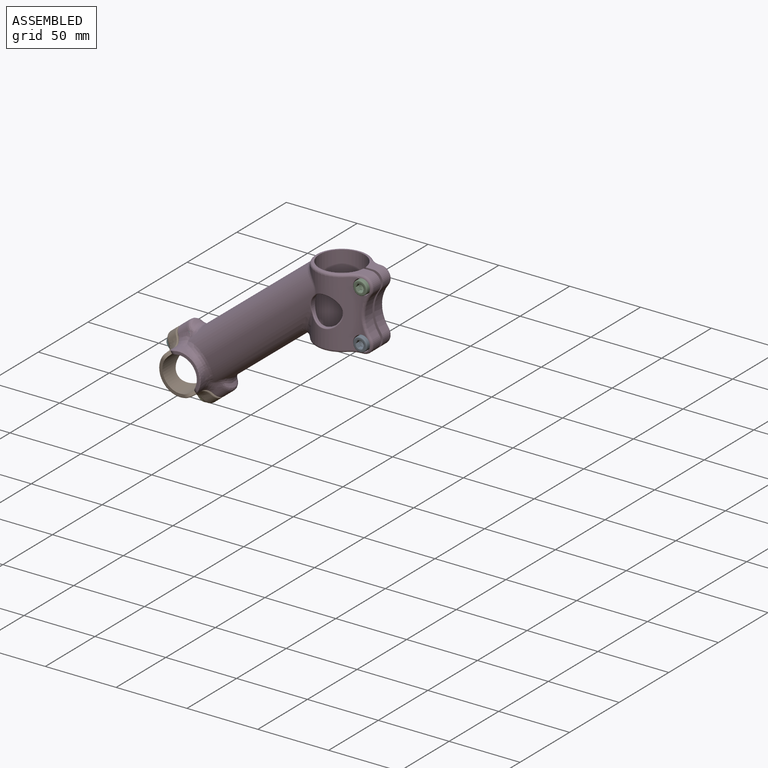
[diagram: assembled view]
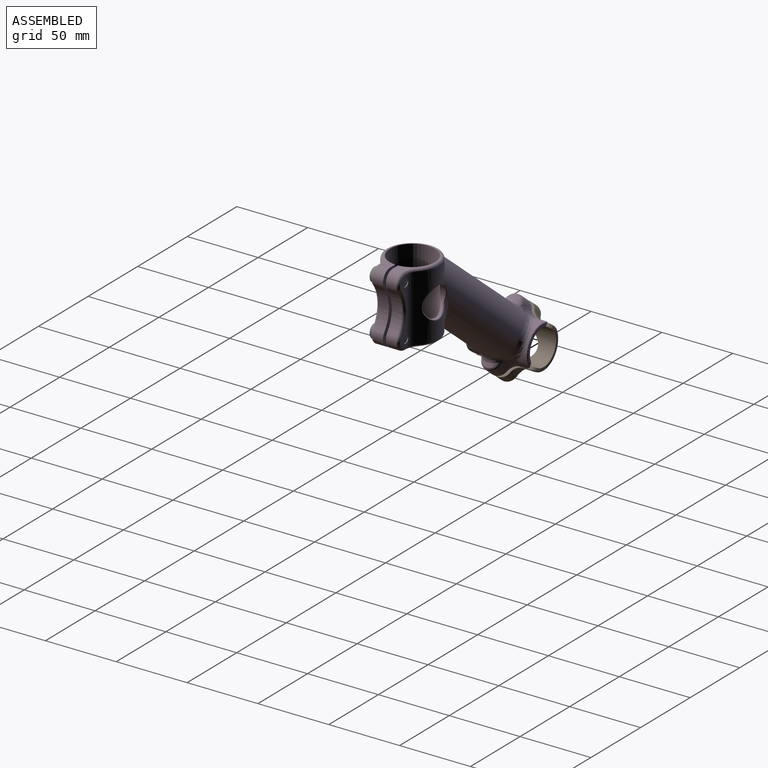
[diagram: assembled view, second angle]
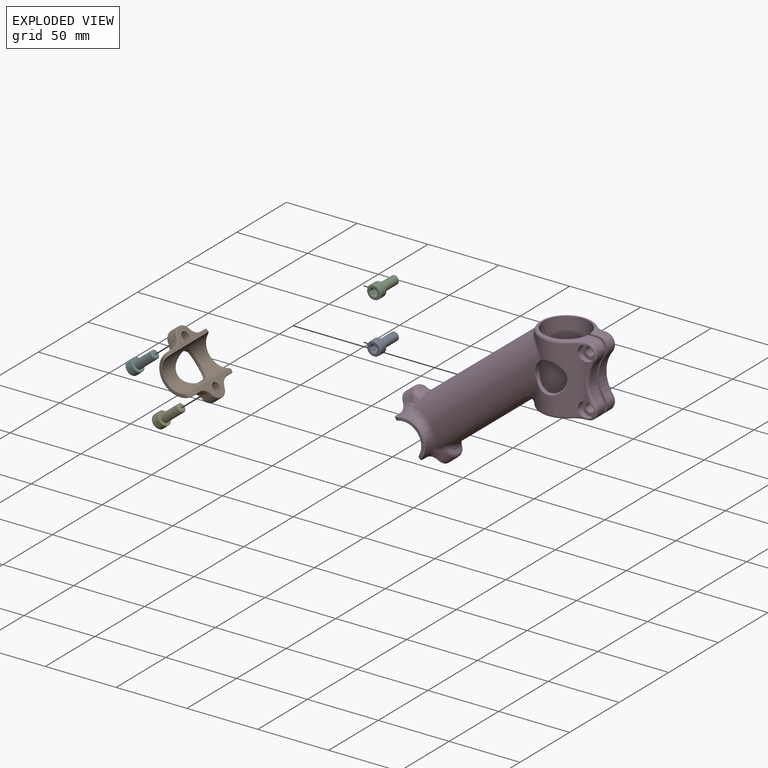
[diagram: exploded view]
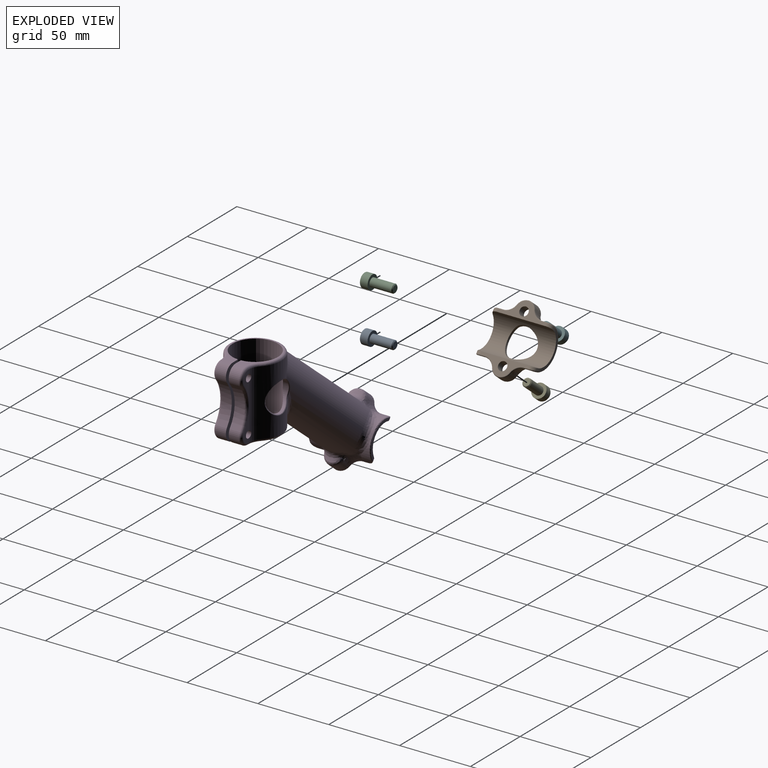
[diagram: exploded view, second angle]
ASSEMBLY  parts=6 mates=4
PART A: 16 faces, bbox 21.8x10.7x10.7 mm
  f0: cone r=2.5mm half-angle=60deg, axis (1,0,0), area 8.9mm2, adj f2,f8,f9,f10,f11,f12,f13
  f1: plane 4.8x4.8mm, normal (-1,0,0), area 18.1mm2, adj f7
  f2: plane 8.3x8.3mm, normal (1,0,0), area 23.9mm2, adj f0,f3
  f3: torus R=4.15mm, axis (1,0,0), area 36.8mm2, adj f2,f4
  f4: cylinder r=4.95mm len=9.9mm, axis (1,0,0), area 155.5mm2, adj f3,f5
  f5: plane 9.9x9.9mm, normal (-1,0,0), area 48.7mm2, adj f4,f6
  f6: cylinder r=3mm len=15.4mm, axis (1,0,0), area 290.3mm2, adj f5,f7
  f7: cone r=2.4mm half-angle=45deg, axis (1,0,0), area 14.4mm2, adj f1,f6
  f8: plane 3.21x2.55mm, normal (0,-0.5,-0.87), area 9mm2, adj f0,f9,f13,f14
  f9: plane 3.21x2.55mm, normal (0,0.5,-0.87), area 9mm2, adj f0,f8,f10,f14
  f10: plane 3.21x2.95mm, normal (0,1,0), area 9mm2, adj f0,f9,f11,f14
  f11: plane 3.21x2.55mm, normal (0,0.5,0.87), area 9mm2, adj f0,f10,f12,f14
  f12: plane 3.21x2.55mm, normal (0,-0.5,0.87), area 9mm2, adj f0,f11,f13,f14
  f13: plane 3.21x2.95mm, normal (0,-1,0), area 9mm2, adj f0,f8,f12,f14
  f14: plane 5.89x5.1mm, normal (1,0,0), area 2.9mm2, adj f8,f9,f10,f11,f12,f13,f15
  f15: cone r=0mm half-angle=59deg, axis (1,0,0), area 22.9mm2, adj f14
PART B: 63 faces, bbox 39x44.1x43.5 mm
  f0: cylinder r=15mm len=25.54mm, axis (0,1,0), area 383.7mm2, adj f13,f15,f16,f18,f43,f44,f45,f46
  f1: plane 3.05x2.99mm, normal (-0.78,0,-0.63), area 4mm2, adj f18,f22,f34
  f2: plane 3.04x2.98mm, normal (-0.78,0,-0.63), area 4mm2, adj f15,f27,f29
  f3: cylinder r=7mm len=13.41mm, axis (0.78,0,0.63), area 113.4mm2, adj f16,f17,f21,f50
  f4: plane 34x8.63mm, normal (0.78,0,0.63), area 152.7mm2, adj f10,f36,f38,f40,f46,f48,f50,f52
  f5: plane 3.04x2.98mm, normal (-0.78,0,-0.63), area 4mm2, adj f18,f20,f34
  f6: cylinder r=15mm len=25.54mm, axis (0,1,0), area 383.7mm2, adj f14,f15,f17,f18,f54,f55,f56,f57
  f7: cylinder r=7mm len=13.41mm, axis (0.78,0,0.63), area 113.4mm2, adj f13,f14,f26,f51
  f8: plane 3.05x2.99mm, normal (-0.78,0,-0.63), area 4mm2, adj f15,f25,f29
  f9: plane 34x8.63mm, normal (0.78,0,0.63), area 152.7mm2, adj f10,f37,f39,f41,f47,f49,f51,f53
  f10: cylinder r=12.5mm len=44mm, axis (0,1,0), area 1197mm2, adj f4,f9,f11,f12,f38,f39,f40,f41
  f11: plane 20.8x17.98mm, normal (0,-1,0), area 56.6mm2, adj f10,f40,f41,f58
  f12: plane 20.8x17.98mm, normal (0,1,0), area 56.6mm2, adj f10,f38,f39,f43
  f13: bspline ~17.32x15.32mm, area 87.3mm2, adj f0,f7,f27,f28,f49
  f14: bspline ~16.59x15.04mm, area 86.7mm2, adj f6,f7,f24,f25,f53
  f15: cylinder r=8mm len=29.45mm, axis (0,1,0), area 82.7mm2, adj f0,f2,f6,f8,f24,f28,f29,f60
  f16: bspline ~17.36x11.89mm, area 86.7mm2, adj f0,f3,f22,f23,f48
  f17: bspline ~17.66x11.91mm, area 87.2mm2, adj f3,f6,f19,f20,f52
  f18: cylinder r=8mm len=29.45mm, axis (0,1,0), area 82.7mm2, adj f0,f1,f5,f6,f19,f23,f34,f61
  f19: bspline ~7.37x6.26mm, area 7.2mm2, adj f17,f18,f20
  f20: bspline ~4.46x3.71mm, area 12mm2, adj f5,f17,f19,f21,f34
  f21: bspline ~13.41x5.01mm, area 47mm2, adj f3,f20,f22,f34
  f22: bspline ~4.46x3.78mm, area 12mm2, adj f1,f16,f21,f23,f34
  f23: bspline ~7.37x6.26mm, area 7.2mm2, adj f16,f18,f22
  f24: bspline ~7.37x6.71mm, area 7.2mm2, adj f14,f15,f25
  f25: bspline ~4.91x3.71mm, area 12mm2, adj f8,f14,f24,f26,f31
  f26: bspline ~13.41x5.41mm, area 47.7mm2, adj f7,f25,f27,f32
  f27: bspline ~4.91x3.71mm, area 12mm2, adj f2,f13,f26,f28,f30
  f28: bspline ~7.37x6.71mm, area 7.2mm2, adj f13,f15,f27
  f29: cylinder r=5.25mm len=10.5mm, axis (-0.78,0,-0.63), area 55.1mm2, adj f2,f8,f15,f30,f31,f33
  f30: extruded ~2.69x2.33mm, area 1.8mm2, adj f27,f29,f32,f33
  f31: extruded ~2.69x2.33mm, area 1.8mm2, adj f25,f29,f32,f33
  f32: extruded ~9.96x4.76mm, area 39.9mm2, adj f26,f30,f31,f33
  f33: plane 10.5x8.12mm, normal (-0.78,0,-0.63), area 55.7mm2, adj f29,f30,f31,f32,f37
  f34: cylinder r=5.25mm len=10.5mm, axis (-0.78,0,-0.63), area 101mm2, adj f1,f5,f18,f20,f21,f22,f35
  f35: plane 10.5x8.16mm, normal (-0.78,0,-0.63), area 56.4mm2, adj f34,f36
  f36: cylinder r=3.1mm len=8.59mm, axis (-0.78,0,-0.63), area 116.9mm2, adj f4,f35
  f37: cylinder r=3.1mm len=8.59mm, axis (-0.78,0,-0.63), area 116.9mm2, adj f9,f33
  f38: cylinder r=5mm len=5.99mm, axis (0.63,0,-0.78), area 15.6mm2, adj f4,f10,f12,f44
  f39: cylinder r=5mm len=5.99mm, axis (0.63,0,-0.78), area 15.6mm2, adj f9,f10,f12,f45
  f40: cylinder r=5mm len=5.99mm, axis (-0.63,0,0.78), area 15.6mm2, adj f4,f10,f11,f56
  f41: cylinder r=5mm len=5.99mm, axis (-0.63,0,0.78), area 15.6mm2, adj f9,f10,f11,f57
  f42: cylinder r=10.5mm len=21.12mm, axis (0.78,0,0.63), area 164mm2, adj f10,f59,f60,f61,f62
  f43: torus R=14.4mm, axis (0,-1,0), area 31.8mm2, adj f0,f12,f44,f45
  f44: bspline ~6.38x6.13mm, area 7.9mm2, adj f0,f38,f43,f46
  f45: bspline ~6.13x5.82mm, area 7.9mm2, adj f0,f39,f43,f47
  f46: cylinder r=0.6mm len=3.12mm, axis (0,1,0), area 3.2mm2, adj f0,f4,f44,f48
  f47: cylinder r=0.6mm len=3.12mm, axis (0,1,0), area 3.2mm2, adj f0,f9,f45,f49
  f48: bspline ~10.43x6.03mm, area 9.5mm2, adj f4,f16,f46,f50
  f49: bspline ~10.43x5.66mm, area 9.5mm2, adj f9,f13,f47,f51
  f50: torus R=6.4mm, axis (0.78,0,0.63), area 15mm2, adj f3,f4,f48,f52
  f51: torus R=6.4mm, axis (0.78,0,0.63), area 15mm2, adj f7,f9,f49,f53
  f52: bspline ~10.43x6.03mm, area 9.5mm2, adj f4,f17,f50,f54
  f53: bspline ~10.43x5.66mm, area 9.5mm2, adj f9,f14,f51,f55
  f54: cylinder r=0.6mm len=3.12mm, axis (0,1,0), area 3.2mm2, adj f4,f6,f52,f56
  f55: cylinder r=0.6mm len=3.12mm, axis (0,1,0), area 3.2mm2, adj f6,f9,f53,f57
  f56: bspline ~6.38x6.13mm, area 7.9mm2, adj f6,f40,f54,f58
  f57: bspline ~6.13x5.82mm, area 7.9mm2, adj f6,f41,f55,f58
  f58: torus R=14.4mm, axis (0,-1,0), area 31.8mm2, adj f6,f11,f56,f57
  f59: bspline ~15.49x12.58mm, area 23.1mm2, adj f0,f42,f60,f61
  f60: bspline ~15.26x4.03mm, area 16.4mm2, adj f15,f42,f59,f62
  f61: bspline ~15.26x3.9mm, area 16.4mm2, adj f18,f42,f59,f62
  f62: bspline ~14.89x12.56mm, area 23.1mm2, adj f6,f42,f60,f61
PART C: same geometry as A
PART D: 138 faces, bbox 144.4x44.1x109.5 mm
  f0: bspline ~16.54x12.89mm, area 50.6mm2, adj f89,f98,f113,f120
  f1: bspline ~25.09x14.7mm, area 120.7mm2, adj f2,f98,f116,f124
  f2: cylinder r=18.5mm len=46.4mm, axis (0,0,1), area 819.6mm2, adj f1,f59,f68,f85,f115,f123
  f3: cylinder r=15mm len=16.31mm, axis (0,1,0), area 73.1mm2, adj f6,f46,f48,f49,f102
  f4: cylinder r=15mm len=16.31mm, axis (0,1,0), area 73.1mm2, adj f7,f34,f36,f38,f112
  f5: cylinder r=15mm len=15.98mm, axis (0,1,0), area 73.1mm2, adj f8,f45,f47,f49,f104
  f6: bspline ~14.09x11.56mm, area 75mm2, adj f3,f12,f21,f44,f101
  f7: bspline ~13.2x11.33mm, area 80.9mm2, adj f4,f13,f21,f40,f98,f99,f112
  f8: bspline ~13.06x12.83mm, area 74.2mm2, adj f5,f10,f14,f43,f105
  f9: bspline ~12.94x12.67mm, area 75mm2, adj f11,f14,f16,f39,f109
  f10: bspline ~6.11x4.47mm, area 2mm2, adj f8,f22,f106
  f11: bspline ~6.11x4.47mm, area 2.2mm2, adj f9,f22,f108
  f12: bspline ~5.75x4.47mm, area 2.2mm2, adj f6,f23,f100
  f13: bspline ~5.75x4.47mm, area 3.1mm2, adj f7,f23,f99
  f14: cylinder r=7mm len=13.6mm, axis (-0.78,0,-0.63), area 147.4mm2, adj f8,f9,f22,f41
  f15: plane 34x8.63mm, normal (-0.78,0,-0.63), area 154.7mm2, adj f18,f26,f31,f33,f37,f39,f41,f43
  f16: cylinder r=15mm len=15.98mm, axis (0,1,0), area 73.1mm2, adj f9,f34,f35,f37,f110
  f17: plane 34x8.63mm, normal (-0.78,0,-0.63), area 154.7mm2, adj f18,f29,f30,f32,f38,f40,f42,f44
  f18: cylinder r=12.5mm len=44mm, axis (0,1,0), area 1587.2mm2, adj f15,f17,f19,f20,f30,f31,f32,f33
  f19: plane 20.8x17.98mm, normal (0,-1,0), area 56.6mm2, adj f18,f32,f33,f34
  f20: plane 20.8x17.98mm, normal (0,1,0), area 56.6mm2, adj f18,f30,f31,f49
  f21: cylinder r=7mm len=13.6mm, axis (-0.78,0,-0.63), area 147.4mm2, adj f6,f7,f23,f42
  f22: bspline ~14.03x7.46mm, area 62.3mm2, adj f10,f11,f14,f107
  f23: bspline ~14.03x7.46mm, area 62.3mm2, adj f12,f13,f21,f99
  f24: cone r=0mm half-angle=59deg, axis (-0.78,0,-0.63), area 22.9mm2, adj f25
  f25: cylinder r=2.5mm len=10.92mm, axis (-0.78,0,-0.63), area 157.1mm2, adj f24,f26
  f26: cone r=2.5mm half-angle=45deg, axis (-0.78,0,-0.63), area 12.2mm2, adj f15,f25
  f27: cone r=0mm half-angle=59deg, axis (-0.78,0,-0.63), area 22.9mm2, adj f28
  f28: cylinder r=2.5mm len=10.92mm, axis (-0.78,0,-0.63), area 157.1mm2, adj f27,f29
  f29: cone r=2.5mm half-angle=45deg, axis (-0.78,0,-0.63), area 12.2mm2, adj f17,f28
  f30: cylinder r=5mm len=5.99mm, axis (0.63,0,-0.78), area 15.6mm2, adj f17,f18,f20,f48
  f31: cylinder r=5mm len=5.99mm, axis (0.63,0,-0.78), area 15.6mm2, adj f15,f18,f20,f47
  f32: cylinder r=5mm len=5.99mm, axis (-0.63,0,0.78), area 15.6mm2, adj f17,f18,f19,f36
  f33: cylinder r=5mm len=5.99mm, axis (-0.63,0,0.78), area 15.6mm2, adj f15,f18,f19,f35
  f34: torus R=14.4mm, axis (0,-1,0), area 31.2mm2, adj f4,f16,f19,f35,f36,f111
  f35: bspline ~6.13x5.82mm, area 7.9mm2, adj f16,f33,f34,f37
  f36: bspline ~6.38x6.13mm, area 7.9mm2, adj f4,f32,f34,f38
  f37: cylinder r=0.6mm len=3.12mm, axis (0,1,0), area 3.2mm2, adj f15,f16,f35,f39
  f38: cylinder r=0.6mm len=3.12mm, axis (0,1,0), area 3.2mm2, adj f4,f17,f36,f40
  f39: bspline ~10.43x5.66mm, area 9.5mm2, adj f9,f15,f37,f41
  f40: bspline ~10.43x6.03mm, area 9.5mm2, adj f7,f17,f38,f42
  f41: torus R=6.4mm, axis (-0.78,0,-0.63), area 15mm2, adj f14,f15,f39,f43
  f42: torus R=6.4mm, axis (-0.78,0,-0.63), area 15mm2, adj f17,f21,f40,f44
  f43: bspline ~10.43x5.66mm, area 9.5mm2, adj f8,f15,f41,f45
  f44: bspline ~10.43x6.03mm, area 9.5mm2, adj f6,f17,f42,f46
  f45: cylinder r=0.6mm len=3.12mm, axis (0,1,0), area 3.2mm2, adj f5,f15,f43,f47
  f46: cylinder r=0.6mm len=3.12mm, axis (0,1,0), area 3.2mm2, adj f3,f17,f44,f48
  f47: bspline ~6.13x5.82mm, area 7.9mm2, adj f5,f31,f45,f49
  f48: bspline ~6.38x6.13mm, area 7.9mm2, adj f3,f30,f46,f49
  f49: torus R=14.4mm, axis (0,-1,0), area 31.2mm2, adj f3,f5,f20,f47,f48,f103
  f50: cylinder r=5.5mm len=11mm, axis (0,-1,0), area 131.6mm2, adj f51,f70,f71,f72,f73,f84,f91
  f51: plane 11x11mm, normal (0,-1,0), area 64.8mm2, adj f50,f96
  f52: cylinder r=5.5mm len=11mm, axis (0,-1,0), area 131.6mm2, adj f53,f61,f63,f65,f67,f84,f95
  f53: plane 11x11mm, normal (0,-1,0), area 64.8mm2, adj f52,f97
  f54: torus R=5.2mm, axis (0,-1,0), area 39.7mm2, adj f55,f56,f79,f94
  f55: cylinder r=1.8mm len=1.8mm, axis (-1,0,0), area 0.2mm2, adj f54,f57,f86,f94
  f56: torus R=24.8mm, axis (0,-1,0), area 26.8mm2, adj f54,f58,f78,f94
  f57: torus R=13.8mm, axis (0,0,1), area 27.4mm2, adj f55,f59,f85,f86
  f58: bspline ~16.38x3mm, area 31.7mm2, adj f56,f60,f78,f85
  f59: torus R=16.7mm, axis (0,0,1), area 231.2mm2, adj f2,f57,f61,f86,f89,f113
  f60: torus R=24.8mm, axis (0,-1,0), area 26.8mm2, adj f58,f62,f78,f92
  f61: torus R=13.8mm, axis (0,0,1), area 27.1mm2, adj f52,f59,f63,f84,f86
  f62: torus R=5.2mm, axis (0,-1,0), area 39.7mm2, adj f60,f64,f80,f92
  f63: cylinder r=1.8mm len=1.78mm, axis (1,0,0), area 0.2mm2, adj f52,f61,f65,f86
  f64: cylinder r=1.8mm len=1.8mm, axis (1,0,0), area 0.2mm2, adj f62,f66,f87,f92
  f65: torus R=5.2mm, axis (0,-1,0), area 36.2mm2, adj f52,f63,f67,f82
  f66: torus R=13.8mm, axis (0,0,1), area 27.4mm2, adj f64,f68,f85,f87
  f67: torus R=24.8mm, axis (0,-1,0), area 26.6mm2, adj f52,f65,f69,f83,f95
  f68: torus R=16.7mm, axis (0,0,1), area 203.3mm2, adj f2,f66,f70,f87,f89,f116
  f69: bspline ~16.38x3mm, area 31.7mm2, adj f67,f71,f83,f84
  f70: torus R=13.8mm, axis (0,0,1), area 27.1mm2, adj f50,f68,f72,f84,f87
  f71: torus R=24.8mm, axis (0,-1,0), area 26.6mm2, adj f50,f69,f73,f83,f91
  f72: cylinder r=1.8mm len=1.78mm, axis (-1,0,0), area 0.2mm2, adj f50,f70,f73,f87
  f73: torus R=5.2mm, axis (0,-1,0), area 36.2mm2, adj f50,f71,f72,f81
  f74: cone r=2.5mm half-angle=45deg, axis (0,-1,0), area 12.2mm2, adj f77,f93
  f75: cone r=2.5mm half-angle=45deg, axis (0,-1,0), area 12.2mm2, adj f76,f93
  f76: cylinder r=2.5mm len=8.75mm, axis (0,-1,0), area 134.5mm2, adj f75,f85,f92
  f77: cylinder r=2.5mm len=8.75mm, axis (0,-1,0), area 134.5mm2, adj f74,f85,f94
  f78: cylinder r=23mm len=27.6mm, axis (0,-1,0), area 213.1mm2, adj f56,f58,f60,f79,f80,f93
  f79: cylinder r=7mm len=11.2mm, axis (0,-1,0), area 111.6mm2, adj f54,f78,f86,f93
  f80: cylinder r=7mm len=11.2mm, axis (0,-1,0), area 111.6mm2, adj f62,f78,f87,f93
  f81: cylinder r=7mm len=11.2mm, axis (0,-1,0), area 111.6mm2, adj f73,f83,f87,f90
  f82: cylinder r=7mm len=11.2mm, axis (0,-1,0), area 111.6mm2, adj f65,f83,f86,f90
  f83: cylinder r=23mm len=27.6mm, axis (0,-1,0), area 213.1mm2, adj f67,f69,f71,f81,f82,f90
  f84: cylinder r=12mm len=46.4mm, axis (0,0,1), area 325.7mm2, adj f50,f52,f61,f69,f70,f89,f91,f95
  f85: cylinder r=12mm len=46.4mm, axis (0,0,1), area 402mm2, adj f2,f57,f58,f66,f76,f77,f92,f94
  f86: plane 37.9x33.4mm, normal (0,0,1), area 157.1mm2, adj f55,f57,f59,f61,f63,f79,f82,f88
  f87: plane 37.9x33.4mm, normal (0,0,-1), area 157.1mm2, adj f64,f66,f68,f70,f72,f80,f81,f88
  f88: cylinder r=16mm len=50mm, axis (0,0,1), area 4188.2mm2, adj f86,f87,f90,f93,f117,f118
  f89: cylinder r=18.5mm len=46.4mm, axis (0,0,1), area 819.6mm2, adj f0,f59,f68,f84,f114,f119
  f90: plane 50x12.23mm, normal (0,1,0), area 401.3mm2, adj f81,f82,f83,f86,f87,f88,f96,f97
  f91: plane 7.59x3.3mm, normal (0,-1,0), area 8.2mm2, adj f50,f71,f84
  f92: plane 17.25x5.28mm, normal (0,1,0), area 42.5mm2, adj f60,f62,f64,f76,f85
  f93: plane 50x12.23mm, normal (0,-1,0), area 405.1mm2, adj f74,f75,f78,f79,f80,f86,f87,f88
  f94: plane 17.25x5.28mm, normal (0,1,0), area 42.5mm2, adj f54,f55,f56,f77,f85
  f95: plane 7.59x3.3mm, normal (0,-1,0), area 8.2mm2, adj f52,f67,f84
  f96: cylinder r=3.1mm len=6.2mm, axis (0,-1,0), area 107.1mm2, adj f51,f90
  f97: cylinder r=3.1mm len=6.2mm, axis (0,-1,0), area 107.1mm2, adj f53,f90
  f98: cylinder r=17.25mm len=108.52mm, axis (-0.78,0,-0.63), area 9866.4mm2, adj f0,f1,f7,f99,f100,f101,f102,f103
  f99: bspline ~19.21x17.81mm, area 111.8mm2, adj f7,f13,f23,f98,f100
  f100: bspline ~4.31x3.93mm, area 11.1mm2, adj f12,f98,f99,f101
  f101: bspline ~9.02x5.97mm, area 16.7mm2, adj f6,f98,f100,f102
  f102: bspline ~16.08x11.31mm, area 71.4mm2, adj f3,f98,f101,f103
  f103: bspline ~13.27x11.93mm, area 63.6mm2, adj f49,f98,f102,f104
  f104: bspline ~16.22x11.43mm, area 71.4mm2, adj f5,f98,f103,f105
  f105: bspline ~9.02x5.54mm, area 16.7mm2, adj f8,f98,f104,f106
  f106: bspline ~4.48x3.48mm, area 11.2mm2, adj f10,f98,f105,f107
  f107: bspline ~17.29x6.75mm, area 101mm2, adj f22,f98,f106,f108
  f108: bspline ~4.58x3.46mm, area 11.7mm2, adj f11,f98,f107,f109
  f109: bspline ~8.2x5.54mm, area 16.7mm2, adj f9,f98,f108,f110
  f110: bspline ~16.22x11.43mm, area 71.4mm2, adj f16,f98,f109,f111
  f111: bspline ~11.58x10.33mm, area 63.6mm2, adj f34,f98,f110,f112
  f112: bspline ~17.35x12.12mm, area 77.5mm2, adj f4,f7,f98,f111
  f113: bspline ~19.46x4.45mm, area 59.6mm2, adj f0,f59,f98,f115
  f114: bspline ~24.61x14.47mm, area 120.7mm2, adj f89,f98,f116,f121
  f115: bspline ~16.45x12.82mm, area 50.6mm2, adj f2,f98,f113,f125
  f116: bspline ~23.08x8.59mm, area 143.4mm2, adj f1,f68,f98,f114
  f117: cylinder r=10.5mm len=21mm, axis (0,-1,0), area 143.7mm2, adj f88,f123,f124,f125,f126
  f118: cylinder r=10.5mm len=21mm, axis (0,-1,0), area 144.2mm2, adj f88,f119,f120,f121,f122
  f119: bspline ~22.22x21.46mm, area 56.8mm2, adj f89,f118,f120,f121
  f120: bspline ~3.9x3.29mm, area 2.3mm2, adj f0,f118,f119,f122
  f121: bspline ~7.91x2.96mm, area 6.3mm2, adj f114,f118,f119,f122
  f122: bspline ~11.51x4.59mm, area 8mm2, adj f98,f118,f120,f121
  f123: bspline ~22.22x21.04mm, area 56.8mm2, adj f2,f117,f124,f125
  f124: bspline ~7.42x2.56mm, area 6.3mm2, adj f1,f117,f123,f126
  f125: bspline ~3.93x3.31mm, area 2.3mm2, adj f115,f117,f123,f126
  f126: bspline ~9.86x4.58mm, area 8mm2, adj f98,f117,f124,f125
  f127: cylinder r=14.75mm len=100.56mm, axis (-0.78,0,-0.63), area 8863.3mm2, adj f128,f129,f130,f131,f132,f133,f134,f135
  f128: cylinder r=18.5mm len=37.96mm, axis (0,0,1), area 975.3mm2, adj f127
  f129: bspline ~5.88x4.57mm, area 0mm2, adj f127,f135,f136
  f130: bspline ~6.28x4.57mm, area 0mm2, adj f127,f133,f137
  f131: bspline ~6.28x4.57mm, area 0mm2, adj f127,f133,f137
  f132: cylinder r=15mm len=23.86mm, axis (0,1,0), area 340.2mm2, adj f127,f133,f135
  f133: bspline ~25.51x7.71mm, area 112.6mm2, adj f127,f130,f131,f132,f137
  f134: bspline ~5.88x4.57mm, area 0mm2, adj f127,f135,f136
  f135: bspline ~25.72x6.96mm, area 112.6mm2, adj f127,f129,f132,f134,f136
  f136: plane 11.79x3.56mm, normal (0.78,0,0.63), area 38.1mm2, adj f127,f129,f134,f135
  f137: plane 11.79x3.56mm, normal (0.78,0,0.63), area 38.1mm2, adj f127,f130,f131,f133
PART E: same geometry as A
PART F: same geometry as A
PLACE A rot(axis=(-0.58,0.58,-0.58),120deg) t=(55.99,-31.72,-43)mm
PLACE B at identity
PLACE C rot(axis=(-0.58,0.58,-0.58),120deg) t=(55.99,-31.72,-7)mm
PLACE D t=(0,-1,0)mm
PLACE E rot(axis=(0.24,0.69,-0.69),152.7deg) t=(-112.97,-34.79,-123.59)mm
PLACE F rot(axis=(0.24,0.69,-0.69),152.7deg) t=(-134.58,-34.79,-96.91)mm
MATE fastened C.f0 <-> D.f52  axis (0,1,0) through (21.2,-7.5,-7)mm
MATE fastened F.f0 <-> B.f37  axis (0.78,0,0.63) through (-115.76,0,-81.67)mm
MATE fastened E.f0 <-> B.f3  axis (0.78,0,0.63) through (-94.15,0,-108.35)mm
MATE fastened A.f0 <-> D.f50  axis (0,1,0) through (21.2,-7.5,-43)mm
